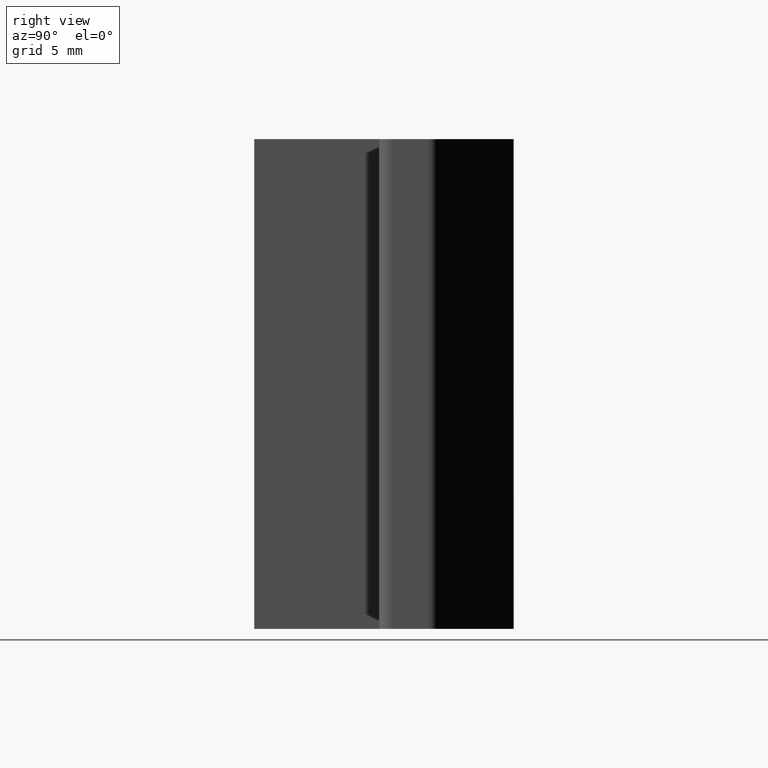
[diagram: clean part render]
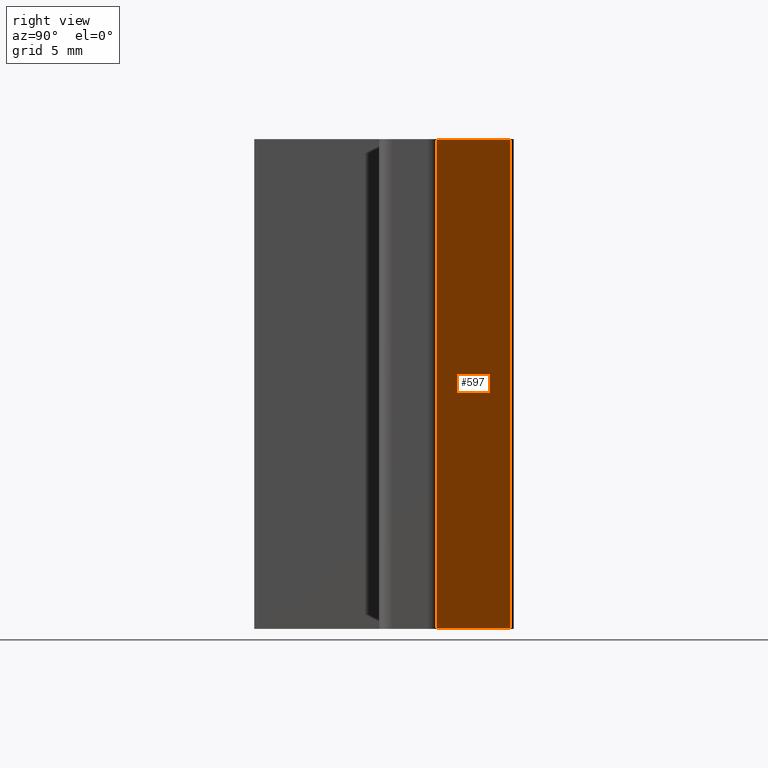
[diagram: same view with one face highlighted and labeled with its STEP entity id]
A machine part, right view. The second image highlights one B-rep face of the part: STEP entity #597.
In plain terms, the highlighted planar face has unit normal (0.7071, 0.7071, 0).
Its self-contained STEP definition (entity closure, byte-faithful):
#29=PLANE('',#672);
#57=FACE_OUTER_BOUND('',#88,.T.);
#88=EDGE_LOOP('',(#518,#519,#520,#521));
#132=LINE('',#998,#187);
#151=LINE('',#1047,#206);
#152=LINE('',#1050,#207);
#153=LINE('',#1051,#208);
#187=VECTOR('',#776,10.);
#206=VECTOR('',#827,10.);
#207=VECTOR('',#830,10.);
#208=VECTOR('',#831,10.);
#276=VERTEX_POINT('',#995);
#277=VERTEX_POINT('',#997);
#291=VERTEX_POINT('',#1045);
#292=VERTEX_POINT('',#1049);
#349=EDGE_CURVE('',#276,#277,#132,.T.);
#374=EDGE_CURVE('',#276,#291,#151,.T.);
#375=EDGE_CURVE('',#292,#291,#152,.T.);
#376=EDGE_CURVE('',#277,#292,#153,.T.);
#518=ORIENTED_EDGE('',*,*,#374,.T.);
#519=ORIENTED_EDGE('',*,*,#375,.F.);
#520=ORIENTED_EDGE('',*,*,#376,.F.);
#521=ORIENTED_EDGE('',*,*,#349,.F.);
#597=ADVANCED_FACE('',(#57),#29,.T.);
#672=AXIS2_PLACEMENT_3D('',#1048,#828,#829);
#776=DIRECTION('',(0.707106781186547,-0.707106781186548,0.));
#827=DIRECTION('',(0.,0.,1.));
#828=DIRECTION('center_axis',(0.707106781186548,0.707106781186547,0.));
#829=DIRECTION('ref_axis',(-0.707106781186547,0.707106781186548,0.));
#830=DIRECTION('',(-0.707106781186547,0.707106781186548,0.));
#831=DIRECTION('',(0.,0.,1.));
#995=CARTESIAN_POINT('',(6.60355339059328,5.35355339059327,-10.));
#997=CARTESIAN_POINT('',(9.60355339059328,2.35355339059327,-10.));
#998=CARTESIAN_POINT('',(9.60355339059328,2.35355339059327,-10.));
#1045=CARTESIAN_POINT('',(6.60355339059328,5.35355339059327,10.));
#1047=CARTESIAN_POINT('',(6.60355339059328,5.35355339059327,0.));
#1048=CARTESIAN_POINT('Origin',(9.60355339059328,2.35355339059327,0.));
#1049=CARTESIAN_POINT('',(9.60355339059328,2.35355339059327,10.));
#1050=CARTESIAN_POINT('',(9.60355339059328,2.35355339059327,10.));
#1051=CARTESIAN_POINT('',(9.60355339059328,2.35355339059327,0.));